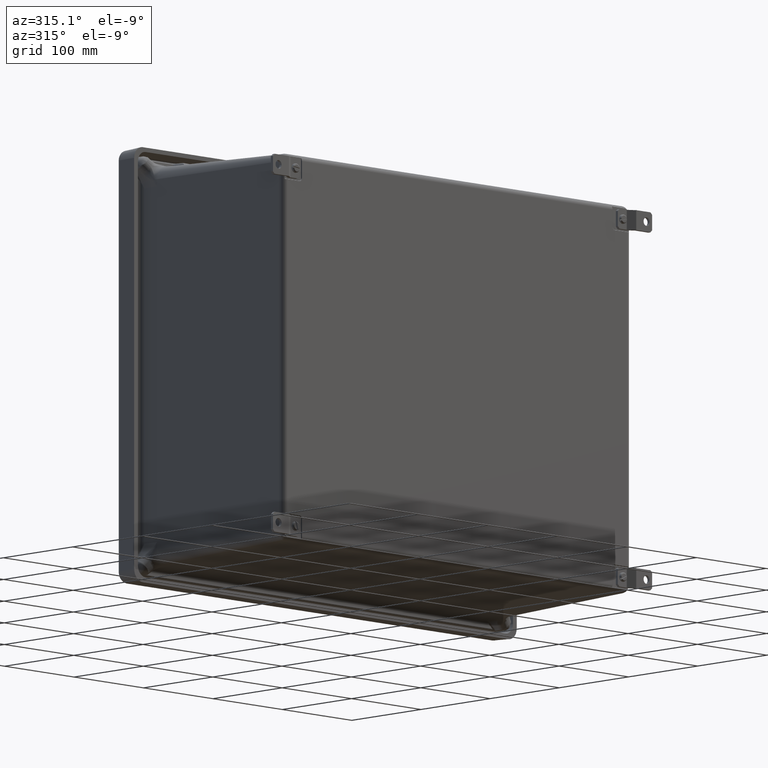
[diagram: clean part render]
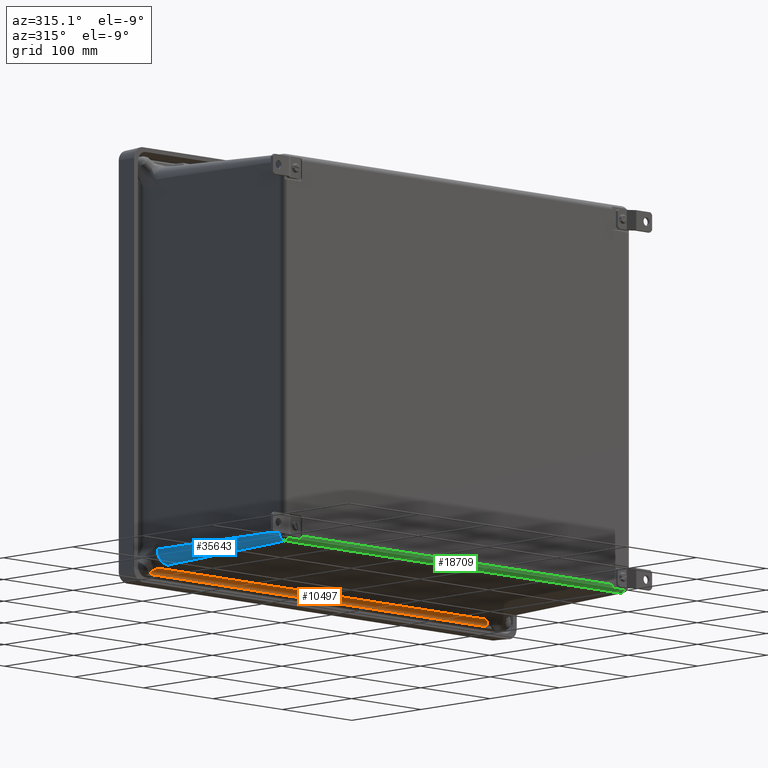
[diagram: same view with three faces highlighted in distinct colors, each labeled with its STEP entity id]
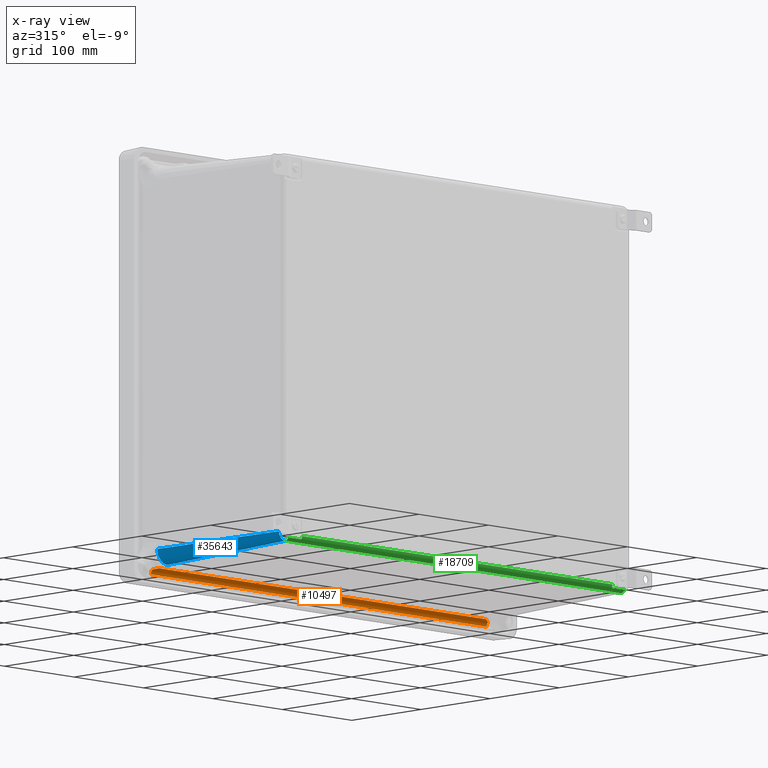
[diagram: x-ray of the same camera — body ghosted, the three highlighted faces saturated]
A machine part, auxiliary view with three faces highlighted in distinct colors.
The next image is the same camera in x-ray (body ghosted, the three faces saturated) — at least one of them is partly hidden behind the body in this view.
Their STEP definitions:

[orange] entity #10497 — the highlighted cylindrical surface (edge-blend (fillet) strip) has radius 6.3589 mm, axis along (-1, 0, 0).
#296 = VECTOR ( 'NONE', #23776, 39.37007874015748100 ) ;
#455 = DIRECTION ( 'NONE',  ( -1.000000000000000000, 0.0000000000000000000, 0.0000000000000000000 ) ) ;
#631 = CARTESIAN_POINT ( 'NONE',  ( 9.288666872626800200, -0.4471866442378780700, -8.132833914228909200 ) ) ;
#1181 = CARTESIAN_POINT ( 'NONE',  ( -9.225520621271785500, -0.4849457614257222100, -8.128749114058894800 ) ) ;
#1361 = EDGE_CURVE ( 'NONE', #8112, #42162, #3372, .T. ) ;
#3372 = B_SPLINE_CURVE_WITH_KNOTS ( 'NONE', 3,
 ( #15300, #37349, #19003, #44728, #22693, #631, #26392, #4351, #30109, #8034, #33817, #11744 ),
 .UNSPECIFIED., .F., .F.,
 ( 4, 2, 2, 2, 2, 4 ),
 ( 3.469446951953613800E-018, 0.004454473001342253200, 0.006681709502013404000, 0.007795327752348975100, 0.008352136877516798400, 0.008908946002684620800 ),
 .UNSPECIFIED. ) ;
#4351 = CARTESIAN_POINT ( 'NONE',  ( 9.257050619152229500, -0.4660091996323822400, -8.130101775461973500 ) ) ;
#4889 = CARTESIAN_POINT ( 'NONE',  ( -9.326871820636235100, -0.4243533316957247000, -8.136434604017212600 ) ) ;
#6207 = VERTEX_POINT ( 'NONE', #14927 ) ;
#8034 = CARTESIAN_POINT ( 'NONE',  ( 9.238067130317064700, -0.4773636892749416600, -8.129100173718553500 ) ) ;
#8112 = VERTEX_POINT ( 'NONE', #39826 ) ;
#8306 = ORIENTED_EDGE ( 'NONE', *, *, #28396, .T. ) ;
#8583 = CARTESIAN_POINT ( 'NONE',  ( -9.475756158136311700, -0.3412393390146565800, -8.177651593575287600 ) ) ;
#9340 = VERTEX_POINT ( 'NONE', #23121 ) ;
#9704 = CARTESIAN_POINT ( 'NONE',  ( 9.225419767319792200, -0.4849457614257222100, -8.128749114058894800 ) ) ;
#10497 = ADVANCED_FACE ( 'NONE', ( #24476 ), #42897, .F. ) ;
#10810 = CARTESIAN_POINT ( 'NONE',  ( -9.225520621271785500, -0.4849457614257222100, -8.128749114058894800 ) ) ;
#11571 = ORIENTED_EDGE ( 'NONE', *, *, #21503, .F. ) ;
#11744 = CARTESIAN_POINT ( 'NONE',  ( 9.225419767319792200, -0.4849457614257222100, -8.128749114058894800 ) ) ;
#12185 = DIRECTION ( 'NONE',  ( -1.000000000000000000, 0.0000000000000000000, 0.0000000000000000000 ) ) ;
#12856 = CARTESIAN_POINT ( 'NONE',  ( -9.524866526976001800, -0.4849457614257222100, -8.128749114058894800 ) ) ;
#13666 = EDGE_CURVE ( 'NONE', #8112, #9340, #26668, .T. ) ;
#14927 = CARTESIAN_POINT ( 'NONE',  ( -9.524866526976001800, -0.2433328504251929500, -8.378946607603126000 ) ) ;
#15300 = CARTESIAN_POINT ( 'NONE',  ( 9.524765673024001300, -0.3178122147173309500, -8.200776346348019900 ) ) ;
#15736 = B_SPLINE_CURVE_WITH_KNOTS ( 'NONE', 3,
 ( #1181, #23235, #4889, #30664, #8583, #34368 ),
 .UNSPECIFIED., .F., .F.,
 ( 4, 2, 4 ),
 ( -3.096732728169295400E-005, 0.004468299810768356300, 0.008967566948818405500 ),
 .UNSPECIFIED. ) ;
#19003 = CARTESIAN_POINT ( 'NONE',  ( 9.426459596711884700, -0.3677836988117269600, -8.160387413360117700 ) ) ;
#19139 = ORIENTED_EDGE ( 'NONE', *, *, #1361, .T. ) ;
#19904 = LINE ( 'NONE', #12856, #296 ) ;
#20125 = DIRECTION ( 'NONE',  ( -1.000000000000000000, 0.0000000000000000000, 0.0000000000000000000 ) ) ;
#20485 = EDGE_CURVE ( 'NONE', #43306, #42162, #19904, .T. ) ;
#21503 = EDGE_CURVE ( 'NONE', #9340, #6207, #37671, .T. ) ;
#21667 = CIRCLE ( 'NONE', #30719, 0.2503500000000002400 ) ;
#22693 = CARTESIAN_POINT ( 'NONE',  ( 9.326565172669548400, -0.4248314210466265200, -8.137767144772171300 ) ) ;
#23121 = CARTESIAN_POINT ( 'NONE',  ( 9.524765673024001300, -0.2433328504251929500, -8.378946607603126000 ) ) ;
#23235 = CARTESIAN_POINT ( 'NONE',  ( -9.276149468326002200, -0.4545818334697254700, -8.129809445787911300 ) ) ;
#23247 = CARTESIAN_POINT ( 'NONE',  ( -10.17026882697600100, -0.4936828504251932200, -8.378946607603126000 ) ) ;
#23776 = DIRECTION ( 'NONE',  ( 1.000000000000000000, -0.0000000000000000000, -0.0000000000000000000 ) ) ;
#24476 = FACE_OUTER_BOUND ( 'NONE', #40584, .T. ) ;
#26392 = CARTESIAN_POINT ( 'NONE',  ( 9.276028671345924800, -0.4546920771733246600, -8.131534647852872100 ) ) ;
#26668 = CIRCLE ( 'NONE', #32218, 0.2503500000000002400 ) ;
#26811 = VERTEX_POINT ( 'NONE', #46851 ) ;
#28396 = EDGE_CURVE ( 'NONE', #43306, #26811, #15736, .T. ) ;
#30109 = CARTESIAN_POINT ( 'NONE',  ( 9.250723412583063500, -0.4697900631051041800, -8.129710393822785300 ) ) ;
#30664 = CARTESIAN_POINT ( 'NONE',  ( -9.426563868057803200, -0.3677818600786536600, -8.160388618318190600 ) ) ;
#30719 = AXIS2_PLACEMENT_3D ( 'NONE', #34260, #12185, #37938 ) ;
#32218 = AXIS2_PLACEMENT_3D ( 'NONE', #42153, #20125, #45841 ) ;
#32518 = ORIENTED_EDGE ( 'NONE', *, *, #20485, .F. ) ;
#33817 = CARTESIAN_POINT ( 'NONE',  ( 9.231685366400814300, -0.4811880578645982300, -8.128880335958770700 ) ) ;
#33883 = DIRECTION ( 'NONE',  ( -1.000000000000000000, 0.0000000000000000000, 0.0000000000000000000 ) ) ;
#34260 = CARTESIAN_POINT ( 'NONE',  ( -9.524866526976001800, -0.4936828504251932200, -8.378946607603126000 ) ) ;
#34368 = CARTESIAN_POINT ( 'NONE',  ( -9.524866526976001800, -0.3178122147173276800, -8.200776346348023400 ) ) ;
#37349 = CARTESIAN_POINT ( 'NONE',  ( 9.475653598721656600, -0.3412401525716823900, -8.177650790518757900 ) ) ;
#37671 = LINE ( 'NONE', #40876, #47437 ) ;
#37938 = DIRECTION ( 'NONE',  ( 0.0000000000000000000, 0.0000000000000000000, 1.000000000000000000 ) ) ;
#38495 = AXIS2_PLACEMENT_3D ( 'NONE', #23247, #33883, #45282 ) ;
#39797 = ORIENTED_EDGE ( 'NONE', *, *, #40033, .T. ) ;
#39826 = CARTESIAN_POINT ( 'NONE',  ( 9.524765673024001300, -0.3178122147173309500, -8.200776346348019900 ) ) ;
#40033 = EDGE_CURVE ( 'NONE', #26811, #6207, #21667, .T. ) ;
#40584 = EDGE_LOOP ( 'NONE', ( #32518, #8306, #39797, #11571, #44033, #19139 ) ) ;
#40876 = CARTESIAN_POINT ( 'NONE',  ( -10.17026882697600100, -0.2433328504251929500, -8.378946607603126000 ) ) ;
#42153 = CARTESIAN_POINT ( 'NONE',  ( 9.524765673024001300, -0.4936828504251932200, -8.378946607603126000 ) ) ;
#42162 = VERTEX_POINT ( 'NONE', #9704 ) ;
#42897 = CYLINDRICAL_SURFACE ( 'NONE', #38495, 0.2503500000000002400 ) ;
#43306 = VERTEX_POINT ( 'NONE', #10810 ) ;
#44033 = ORIENTED_EDGE ( 'NONE', *, *, #13666, .F. ) ;
#44728 = CARTESIAN_POINT ( 'NONE',  ( 9.351687897688808700, -0.4102139647069297800, -8.142421838428232300 ) ) ;
#45282 = DIRECTION ( 'NONE',  ( 0.0000000000000000000, 0.0000000000000000000, 1.000000000000000000 ) ) ;
#45841 = DIRECTION ( 'NONE',  ( 0.0000000000000000000, 0.0000000000000000000, 1.000000000000000000 ) ) ;
#46851 = CARTESIAN_POINT ( 'NONE',  ( -9.524866526976001800, -0.3178122147173276800, -8.200776346348023400 ) ) ;
#47437 = VECTOR ( 'NONE', #455, 39.37007874015748100 ) ;

[blue] entity #35643 — the highlighted conical surface has half-angle 2 deg.
#1850 = DIRECTION ( 'NONE',  ( 0.0000000000000000000, 1.000000000000000000, -0.0000000000000000000 ) ) ;
#4601 = EDGE_CURVE ( 'NONE', #11380, #9537, #36160, .T. ) ;
#7311 = LINE ( 'NONE', #38592, #15965 ) ;
#9537 = VERTEX_POINT ( 'NONE', #17481 ) ;
#10588 = DIRECTION ( 'NONE',  ( 0.0000000000000000000, 0.9993908270190957600, -0.03489949670250101100 ) ) ;
#10730 = ORIENTED_EDGE ( 'NONE', *, *, #16085, .T. ) ;
#10891 = CONICAL_SURFACE ( 'NONE', #24475, 0.6258750000000006300, 0.03490658503988663300 ) ;
#11380 = VERTEX_POINT ( 'NONE', #47453 ) ;
#11800 = DIRECTION ( 'NONE',  ( 0.0000000000000000000, -1.000000000000000000, -0.0000000000000000000 ) ) ;
#13580 = EDGE_CURVE ( 'NONE', #23231, #9537, #31297, .T. ) ;
#15669 = CARTESIAN_POINT ( 'NONE',  ( -9.524866526976001800, 0.007017149574806738100, -7.520053837472433500 ) ) ;
#15965 = VECTOR ( 'NONE', #27668, 39.37007874015748900 ) ;
#16085 = EDGE_CURVE ( 'NONE', #23231, #25597, #28265, .T. ) ;
#17481 = CARTESIAN_POINT ( 'NONE',  ( -9.524866526976001800, -1.203460625607187600, -8.103658022110419500 ) ) ;
#18614 = EDGE_CURVE ( 'NONE', #25597, #11380, #7311, .T. ) ;
#19145 = CARTESIAN_POINT ( 'NONE',  ( -9.524866526976001800, -7.887744939424663900, -7.870237670370293900 ) ) ;
#19393 = DIRECTION ( 'NONE',  ( 0.0000000000000000000, 1.000000000000000000, 0.0000000000000000000 ) ) ;
#21300 = ORIENTED_EDGE ( 'NONE', *, *, #13580, .F. ) ;
#23231 = VERTEX_POINT ( 'NONE', #19145 ) ;
#23523 = ORIENTED_EDGE ( 'NONE', *, *, #4601, .T. ) ;
#23881 = CARTESIAN_POINT ( 'NONE',  ( -9.524866526976001800, -7.887744939424665700, -7.520053837472433500 ) ) ;
#24475 = AXIS2_PLACEMENT_3D ( 'NONE', #15669, #19393, #37737 ) ;
#24656 = EDGE_LOOP ( 'NONE', ( #21300, #10730, #39887, #23523 ) ) ;
#25597 = VERTEX_POINT ( 'NONE', #28920 ) ;
#27612 = DIRECTION ( 'NONE',  ( 0.0000000000000000000, 0.0000000000000000000, -1.000000000000000000 ) ) ;
#27668 = DIRECTION ( 'NONE',  ( -0.03489949670250101100, 0.9993908270190957600, 0.0000000000000000000 ) ) ;
#28265 = CIRCLE ( 'NONE', #46788, 0.3501838328978602600 ) ;
#28920 = CARTESIAN_POINT ( 'NONE',  ( -9.875050359873862100, -7.887744939424663900, -7.520053837472433500 ) ) ;
#31297 = LINE ( 'NONE', #37129, #38760 ) ;
#31654 = FACE_OUTER_BOUND ( 'NONE', #24656, .T. ) ;
#33866 = CARTESIAN_POINT ( 'NONE',  ( -9.524866526976001800, -1.203460625607187100, -7.520053837472433500 ) ) ;
#35643 = ADVANCED_FACE ( 'NONE', ( #31654 ), #10891, .T. ) ;
#36160 = CIRCLE ( 'NONE', #43481, 0.5836041846379858000 ) ;
#37129 = CARTESIAN_POINT ( 'NONE',  ( -9.524866526976001800, 0.007017149574806738100, -8.145928837472434100 ) ) ;
#37565 = DIRECTION ( 'NONE',  ( 0.0000000000000000000, 0.0000000000000000000, -1.000000000000000000 ) ) ;
#37737 = DIRECTION ( 'NONE',  ( 0.0000000000000000000, 0.0000000000000000000, -1.000000000000000000 ) ) ;
#38592 = CARTESIAN_POINT ( 'NONE',  ( -10.15074152697600100, 0.007017149574806738100, -7.520053837472433500 ) ) ;
#38760 = VECTOR ( 'NONE', #10588, 39.37007874015748900 ) ;
#39887 = ORIENTED_EDGE ( 'NONE', *, *, #18614, .T. ) ;
#43481 = AXIS2_PLACEMENT_3D ( 'NONE', #33866, #11800, #37565 ) ;
#46788 = AXIS2_PLACEMENT_3D ( 'NONE', #23881, #1850, #27612 ) ;
#47453 = CARTESIAN_POINT ( 'NONE',  ( -10.10847071161398800, -1.203460625607187600, -7.520053837472433500 ) ) ;

[green] entity #18709 — the highlighted cylindrical surface (edge-blend (fillet) strip) has radius 6.3589 mm, axis along (-1, 0, 0).
#846 = CARTESIAN_POINT ( 'NONE',  ( 8.797931853685554400, -8.129357850425194000, -7.620040176826063500 ) ) ;
#876 = CARTESIAN_POINT ( 'NONE',  ( -8.817485858703440400, -8.089342113783846600, -7.755827179427988000 ) ) ;
#1171 = CARTESIAN_POINT ( 'NONE',  ( -9.524866526976001800, -8.086631450425194600, -7.759924283225038800 ) ) ;
#1742 = EDGE_CURVE ( 'NONE', #23231, #30738, #40933, .T. ) ;
#2695 = CARTESIAN_POINT ( 'NONE',  ( 8.801053257140615900, -8.107318948653361400, -7.722975015857335800 ) ) ;
#4343 = VERTEX_POINT ( 'NONE', #36490 ) ;
#4589 = CARTESIAN_POINT ( 'NONE',  ( -8.826696417531596900, -8.086631450425196400, -7.759924283225039700 ) ) ;
#4898 = VECTOR ( 'NONE', #28163, 39.37007874015748100 ) ;
#5767 = CARTESIAN_POINT ( 'NONE',  ( -9.524866526976001800, -8.129357850425194000, -7.620040176826063500 ) ) ;
#6082 = DIRECTION ( 'NONE',  ( 0.0000000000000000000, 0.0000000000000000000, 1.000000000000000000 ) ) ;
#6236 = CARTESIAN_POINT ( 'NONE',  ( 8.830111738268657400, -8.086631450425194600, -7.759924283225038800 ) ) ;
#6398 = CARTESIAN_POINT ( 'NONE',  ( 8.799111990941943500, -8.114969551155953200, -7.703973585702006400 ) ) ;
#7420 = LINE ( 'NONE', #1171, #12046 ) ;
#7466 = ORIENTED_EDGE ( 'NONE', *, *, #42486, .T. ) ;
#7849 = DIRECTION ( 'NONE',  ( -1.000000000000000000, 0.0000000000000000000, 0.0000000000000000000 ) ) ;
#8000 = EDGE_LOOP ( 'NONE', ( #40742, #14544, #32942, #10638, #19466, #7466, #24451, #28212, #22174, #36005 ) ) ;
#8088 =( BOUNDED_CURVE ( )  B_SPLINE_CURVE ( 3, ( #16842, #42428, #46265, #24228 ),
 .UNSPECIFIED., .F., .F. ) 
 B_SPLINE_CURVE_WITH_KNOTS ( ( 4, 4 ),
 ( 3.141592653589793100, 3.455786269056635000 ),
 .UNSPECIFIED. ) 
 CURVE ( )  GEOMETRIC_REPRESENTATION_ITEM ( )  RATIONAL_B_SPLINE_CURVE ( ( 1.000000000000000000, 0.9917904357860589700, 0.9917904357860589700, 1.000000000000000000 ) ) 
 REPRESENTATION_ITEM ( '' )  );
#9774 = DIRECTION ( 'NONE',  ( -1.000000000000000000, 0.0000000000000000000, 0.0000000000000000000 ) ) ;
#10246 = CARTESIAN_POINT ( 'NONE',  ( 8.797931853685554400, -8.129357850425194000, -7.620040176826063500 ) ) ;
#10638 = ORIENTED_EDGE ( 'NONE', *, *, #1742, .F. ) ;
#11413 = LINE ( 'NONE', #46964, #28712 ) ;
#11531 = EDGE_CURVE ( 'NONE', #4343, #30738, #14709, .T. ) ;
#11825 = CARTESIAN_POINT ( 'NONE',  ( -8.801152212647052100, -8.107324476193694500, -7.722962365447920700 ) ) ;
#11954 = CARTESIAN_POINT ( 'NONE',  ( 9.524765673024001300, -7.887744939424663900, -7.870237670370293900 ) ) ;
#12046 = VECTOR ( 'NONE', #23224, 39.37007874015748100 ) ;
#12869 = CARTESIAN_POINT ( 'NONE',  ( 8.830111738268657400, -8.086631450425194600, -7.759924283225038800 ) ) ;
#13332 = CARTESIAN_POINT ( 'NONE',  ( 8.826596781256197800, -8.086631450425192800, -7.759924283225039700 ) ) ;
#13660 = CARTESIAN_POINT ( 'NONE',  ( 8.817361464876547900, -8.089353026289828100, -7.755810351517142800 ) ) ;
#13683 = FACE_OUTER_BOUND ( 'NONE', #8000, .T. ) ;
#14487 = VERTEX_POINT ( 'NONE', #27899 ) ;
#14544 = ORIENTED_EDGE ( 'NONE', *, *, #23790, .T. ) ;
#14709 = LINE ( 'NONE', #17046, #4898 ) ;
#15193 = B_SPLINE_CURVE_WITH_KNOTS ( 'NONE', 3,
 ( #44491, #26475, #33889, #11825, #37589, #15525, #41270, #19245, #44976, #22937, #876, #26650, #4589, #30355 ),
 .UNSPECIFIED., .F., .F.,
 ( 4, 2, 2, 2, 2, 2, 4 ),
 ( 0.0000000000000000000, 0.0005220647425910933600, 0.001044129485182186700, 0.001305161856477715400, 0.001566194227773243800, 0.001827226599068772400, 0.002088258970364301000 ),
 .UNSPECIFIED. ) ;
#15492 = CARTESIAN_POINT ( 'NONE',  ( 8.798937070435249200, -8.117102191732277200, -7.697410759979781000 ) ) ;
#15525 = CARTESIAN_POINT ( 'NONE',  ( -8.805206086161499400, -8.099858793944893200, -7.737985235608865000 ) ) ;
#16842 = CARTESIAN_POINT ( 'NONE',  ( -8.798032707637544200, -8.129357850425194000, -7.620040176826063500 ) ) ;
#17046 = CARTESIAN_POINT ( 'NONE',  ( -9.524866526976001800, -8.086631450425194600, -7.759924283225038800 ) ) ;
#17355 = CARTESIAN_POINT ( 'NONE',  ( 8.810777325117054900, -8.093633053834762900, -7.748954163875037400 ) ) ;
#17868 = EDGE_CURVE ( 'NONE', #35986, #23231, #11413, .T. ) ;
#18064 = CIRCLE ( 'NONE', #41899, 0.2503500000000002400 ) ;
#18709 = ADVANCED_FACE ( 'NONE', ( #13683 ), #41852, .T. ) ;
#19145 = CARTESIAN_POINT ( 'NONE',  ( -9.524866526976001800, -7.887744939424663900, -7.870237670370293900 ) ) ;
#19245 = CARTESIAN_POINT ( 'NONE',  ( -8.809168831829113700, -8.095211705979776800, -7.746297298292837800 ) ) ;
#19421 = DIRECTION ( 'NONE',  ( -1.000000000000000000, 0.0000000000000000000, 0.0000000000000000000 ) ) ;
#19466 = ORIENTED_EDGE ( 'NONE', *, *, #17868, .F. ) ;
#19477 = VERTEX_POINT ( 'NONE', #22564 ) ;
#20754 = CARTESIAN_POINT ( 'NONE',  ( -9.524866526976001800, -7.879007850425193900, -7.620040176826063500 ) ) ;
#21080 = CARTESIAN_POINT ( 'NONE',  ( 8.806253040787002100, -8.098303602575450500, -7.740847324314986000 ) ) ;
#22111 = CARTESIAN_POINT ( 'NONE',  ( -8.798032707637544200, -8.129357850425194000, -7.620040176826063500 ) ) ;
#22174 = ORIENTED_EDGE ( 'NONE', *, *, #44124, .T. ) ;
#22564 = CARTESIAN_POINT ( 'NONE',  ( -8.799037924387237200, -8.117102191732277200, -7.697410759979781000 ) ) ;
#22901 = CARTESIAN_POINT ( 'NONE',  ( 8.797931853685558000, -8.129357850425194000, -7.646368060715763800 ) ) ;
#22937 = CARTESIAN_POINT ( 'NONE',  ( -8.814996802322641000, -8.090723168787613800, -7.753679655360134100 ) ) ;
#23140 = CARTESIAN_POINT ( 'NONE',  ( -9.524866526976001800, -8.086631450425194600, -7.759924283225038800 ) ) ;
#23224 = DIRECTION ( 'NONE',  ( -1.000000000000000000, 0.0000000000000000000, 0.0000000000000000000 ) ) ;
#23231 = VERTEX_POINT ( 'NONE', #19145 ) ;
#23424 = EDGE_CURVE ( 'NONE', #40638, #35507, #36509, .T. ) ;
#23790 = EDGE_CURVE ( 'NONE', #19477, #4343, #15193, .T. ) ;
#24115 = EDGE_CURVE ( 'NONE', #40638, #19477, #8088, .T. ) ;
#24228 = CARTESIAN_POINT ( 'NONE',  ( -8.799037924387237200, -8.117102191732277200, -7.697410759979781000 ) ) ;
#24451 = ORIENTED_EDGE ( 'NONE', *, *, #47102, .T. ) ;
#24740 = CARTESIAN_POINT ( 'NONE',  ( 8.802227885560665000, -8.104420826150009900, -7.729164238827371100 ) ) ;
#25540 = VECTOR ( 'NONE', #27826, 39.37007874015748100 ) ;
#26475 = CARTESIAN_POINT ( 'NONE',  ( -8.799212850714605200, -8.114969480189905900, -7.703973804087509000 ) ) ;
#26650 = CARTESIAN_POINT ( 'NONE',  ( -8.823301064697210100, -8.087292296416697100, -7.758950946661429700 ) ) ;
#27826 = DIRECTION ( 'NONE',  ( 1.000000000000000000, -0.0000000000000000000, -0.0000000000000000000 ) ) ;
#27899 = CARTESIAN_POINT ( 'NONE',  ( 9.524765673024001300, -8.086631450425194600, -7.759924283225038800 ) ) ;
#28163 = DIRECTION ( 'NONE',  ( -1.000000000000000000, 0.0000000000000000000, 0.0000000000000000000 ) ) ;
#28212 = ORIENTED_EDGE ( 'NONE', *, *, #41584, .T. ) ;
#28461 = CARTESIAN_POINT ( 'NONE',  ( 8.799494105142585500, -8.112579354179521500, -7.710405498130688400 ) ) ;
#28680 = DIRECTION ( 'NONE',  ( -1.000000000000000000, 0.0000000000000000000, 0.0000000000000000000 ) ) ;
#28712 = VECTOR ( 'NONE', #28680, 39.37007874015748100 ) ;
#29910 = CARTESIAN_POINT ( 'NONE',  ( 9.524765673024001300, -7.879007850425193900, -7.620040176826063500 ) ) ;
#30355 = CARTESIAN_POINT ( 'NONE',  ( -8.830212592220645400, -8.086631450425194600, -7.759924283225038800 ) ) ;
#30738 = VERTEX_POINT ( 'NONE', #23140 ) ;
#30923 = B_SPLINE_CURVE_WITH_KNOTS ( 'NONE', 3,
 ( #6236, #13332, #35711, #13660, #39396, #17355, #43075, #21080, #46757, #24740, #2695, #28461, #6398, #32176 ),
 .UNSPECIFIED., .F., .F.,
 ( 4, 2, 2, 2, 2, 2, 4 ),
 ( 0.0000000000000000000, 0.0002675940815743981300, 0.0005351881631487962600, 0.0008027822447231944400, 0.001070376326297592500, 0.001605564489446316700, 0.002140752652595040600 ),
 .UNSPECIFIED. ) ;
#31465 = AXIS2_PLACEMENT_3D ( 'NONE', #41441, #19421, #45142 ) ;
#31578 = CARTESIAN_POINT ( 'NONE',  ( 8.798937070435249200, -8.117102191732277200, -7.697410759979781000 ) ) ;
#31840 =( BOUNDED_CURVE ( )  B_SPLINE_CURVE ( 3, ( #15492, #33717, #22901, #846 ),
 .UNSPECIFIED., .F., .F. ) 
 B_SPLINE_CURVE_WITH_KNOTS ( ( 4, 4 ),
 ( 5.968991691712743900, 6.283185307179586200 ),
 .UNSPECIFIED. ) 
 CURVE ( )  GEOMETRIC_REPRESENTATION_ITEM ( )  RATIONAL_B_SPLINE_CURVE ( ( 1.000000000000000000, 0.9917904357860589700, 0.9917904357860589700, 1.000000000000000000 ) ) 
 REPRESENTATION_ITEM ( '' )  );
#32176 = CARTESIAN_POINT ( 'NONE',  ( 8.798937070435249200, -8.117102191732277200, -7.697410759979781000 ) ) ;
#32942 = ORIENTED_EDGE ( 'NONE', *, *, #11531, .T. ) ;
#33633 = DIRECTION ( 'NONE',  ( 0.0000000000000000000, 0.0000000000000000000, 1.000000000000000000 ) ) ;
#33717 = CARTESIAN_POINT ( 'NONE',  ( 8.798269699502384400, -8.125238815378169800, -7.672371733925348100 ) ) ;
#33889 = CARTESIAN_POINT ( 'NONE',  ( -8.799595045617499200, -8.112579940886298900, -7.710403538154956500 ) ) ;
#35507 = VERTEX_POINT ( 'NONE', #10246 ) ;
#35711 = CARTESIAN_POINT ( 'NONE',  ( 8.823178787065156600, -8.087297253364024400, -7.758943589197960100 ) ) ;
#35986 = VERTEX_POINT ( 'NONE', #11954 ) ;
#36005 = ORIENTED_EDGE ( 'NONE', *, *, #23424, .F. ) ;
#36490 = CARTESIAN_POINT ( 'NONE',  ( -8.830212592220645400, -8.086631450425194600, -7.759924283225038800 ) ) ;
#36509 = LINE ( 'NONE', #5767, #25540 ) ;
#37589 = CARTESIAN_POINT ( 'NONE',  ( -8.802318153355727800, -8.104440143158255300, -7.729125549229448400 ) ) ;
#39396 = CARTESIAN_POINT ( 'NONE',  ( 8.814889390588419400, -8.090728389698988100, -7.753671038699645900 ) ) ;
#39907 = VERTEX_POINT ( 'NONE', #31578 ) ;
#40638 = VERTEX_POINT ( 'NONE', #22111 ) ;
#40742 = ORIENTED_EDGE ( 'NONE', *, *, #24115, .T. ) ;
#40933 = CIRCLE ( 'NONE', #31465, 0.2503500000000002400 ) ;
#41270 = CARTESIAN_POINT ( 'NONE',  ( -8.806350544847156000, -8.098308154214162600, -7.740838954285965900 ) ) ;
#41441 = CARTESIAN_POINT ( 'NONE',  ( -9.524866526976001800, -7.879007850425193900, -7.620040176826063500 ) ) ;
#41584 = EDGE_CURVE ( 'NONE', #47585, #39907, #30923, .T. ) ;
#41852 = CYLINDRICAL_SURFACE ( 'NONE', #42295, 0.2503500000000002400 ) ;
#41899 = AXIS2_PLACEMENT_3D ( 'NONE', #29910, #7849, #33633 ) ;
#42295 = AXIS2_PLACEMENT_3D ( 'NONE', #20754, #9774, #6082 ) ;
#42428 = CARTESIAN_POINT ( 'NONE',  ( -8.798032707637544200, -8.129357850425194000, -7.646368060715763800 ) ) ;
#42486 = EDGE_CURVE ( 'NONE', #35986, #14487, #18064, .T. ) ;
#43075 = CARTESIAN_POINT ( 'NONE',  ( 8.809076895350683500, -8.095202783273194300, -7.746312679004501200 ) ) ;
#44124 = EDGE_CURVE ( 'NONE', #39907, #35507, #31840, .T. ) ;
#44491 = CARTESIAN_POINT ( 'NONE',  ( -8.799037924387237200, -8.117102191732277200, -7.697410759979781000 ) ) ;
#44976 = CARTESIAN_POINT ( 'NONE',  ( -8.810861928941758200, -8.093645122566631000, -7.748934426735982800 ) ) ;
#45142 = DIRECTION ( 'NONE',  ( 0.0000000000000000000, 0.0000000000000000000, 1.000000000000000000 ) ) ;
#46265 = CARTESIAN_POINT ( 'NONE',  ( -8.798370553454368800, -8.125238815378169800, -7.672371733925348100 ) ) ;
#46757 = CARTESIAN_POINT ( 'NONE',  ( 8.805110005673986600, -8.099852489743705400, -7.737996756941260700 ) ) ;
#46964 = CARTESIAN_POINT ( 'NONE',  ( -9.524866526976001800, -7.887744939424665700, -7.870237670370293900 ) ) ;
#47102 = EDGE_CURVE ( 'NONE', #14487, #47585, #7420, .T. ) ;
#47585 = VERTEX_POINT ( 'NONE', #12869 ) ;